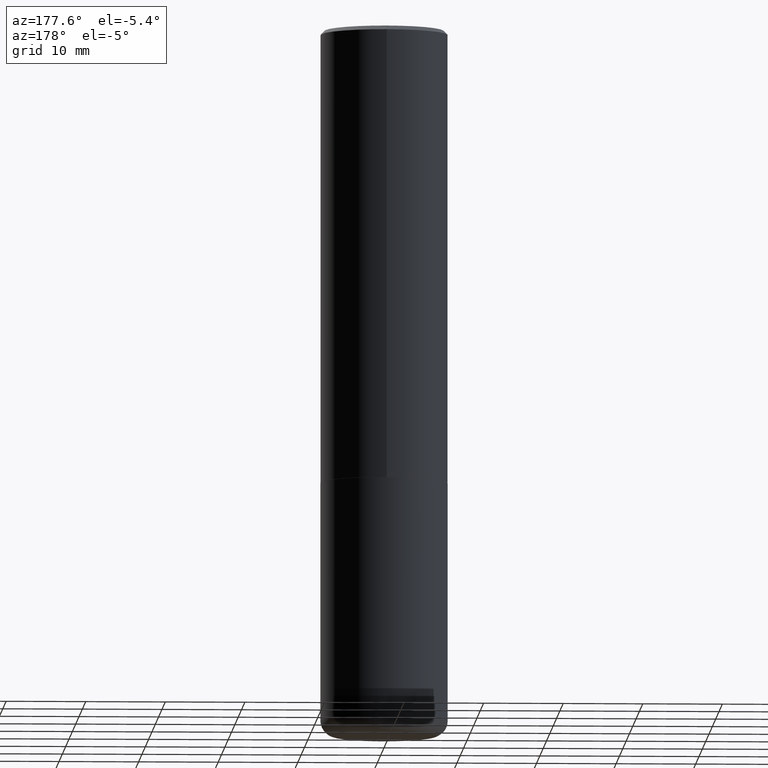
[diagram: clean part render]
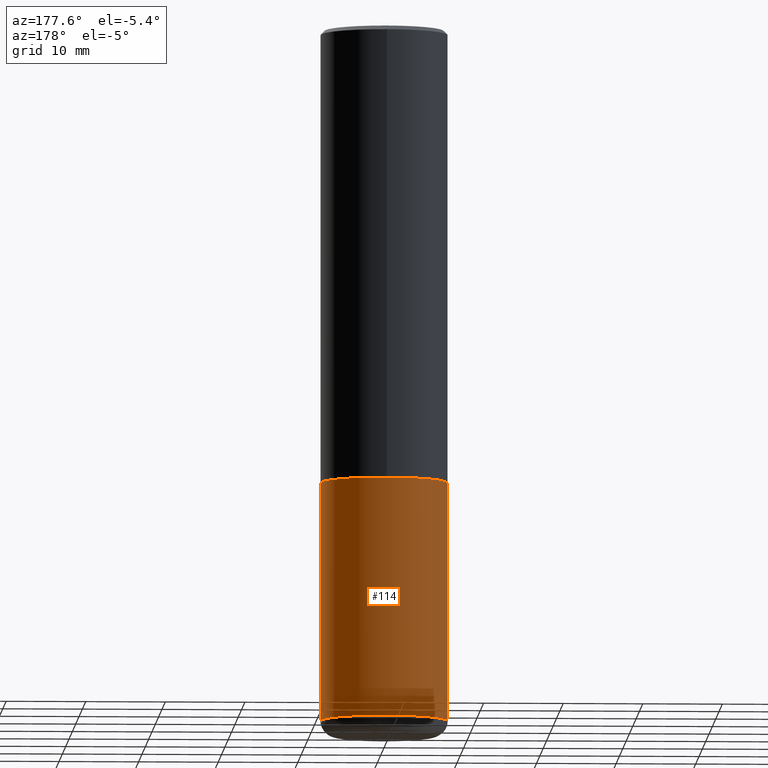
[diagram: same view with one face highlighted and labeled with its STEP entity id]
A machine part, auxiliary view. The second image highlights one B-rep face of the part: STEP entity #114.
In plain terms, the highlighted cylindrical surface (partial cylindrical patch) has radius 7.9997 mm, axis along (-0, 0, 1).
Its self-contained STEP definition (entity closure, byte-faithful):
#17 = AXIS2_PLACEMENT_3D ( 'NONE', #188, #324, #24 ) ;
#21 = ORIENTED_EDGE ( 'NONE', *, *, #118, .F. ) ;
#24 = DIRECTION ( 'NONE',  ( 1.000000000000000000, -6.982962677686266711E-15, 4.876176775795936353E-29 ) ) ;
#26 = ORIENTED_EDGE ( 'NONE', *, *, #66, .T. ) ;
#40 = VERTEX_POINT ( 'NONE', #389 ) ;
#53 = LINE ( 'NONE', #147, #103 ) ;
#56 = CYLINDRICAL_SURFACE ( 'NONE', #17, 0.3149500000000000077 ) ;
#58 = DIRECTION ( 'NONE',  ( 1.000000000000000000, -6.982962677686269866E-15, 0.000000000000000000 ) ) ;
#60 = EDGE_CURVE ( 'NONE', #381, #320, #74, .T. ) ;
#66 = EDGE_CURVE ( 'NONE', #320, #40, #191, .T. ) ;
#74 = CIRCLE ( 'NONE', #239, 0.3149500000000000077 ) ;
#103 = VECTOR ( 'NONE', #305, 39.37007874015748143 ) ;
#114 = ADVANCED_FACE ( 'NONE', ( #353 ), #56, .T. ) ;
#118 = EDGE_CURVE ( 'NONE', #395, #40, #336, .T. ) ;
#120 = DIRECTION ( 'NONE',  ( -2.445468806185136877E-29, 3.491481338843145188E-15, 1.000000000000000000 ) ) ;
#125 = VECTOR ( 'NONE', #120, 39.37007874015748143 ) ;
#138 = CARTESIAN_POINT ( 'NONE',  ( -0.3149500000000001743, -9.721167535529105379E-15, -3.425199999999999800 ) ) ;
#147 = CARTESIAN_POINT ( 'NONE',  ( 0.3149500000000000077, -2.199284095337289871E-15, 1.535751875536930130E-29 ) ) ;
#149 = CARTESIAN_POINT ( 'NONE',  ( 5.487876547960063631E-29, -7.835233272497900762E-15, -2.244099999999999540 ) ) ;
#188 = CARTESIAN_POINT ( 'NONE',  ( 0.000000000000000000, 0.000000000000000000, 0.000000000000000000 ) ) ;
#191 = LINE ( 'NONE', #298, #125 ) ;
#239 = AXIS2_PLACEMENT_3D ( 'NONE', #259, #358, #58 ) ;
#241 = ORIENTED_EDGE ( 'NONE', *, *, #413, .F. ) ;
#259 = CARTESIAN_POINT ( 'NONE',  ( 8.376219754945329068E-29, -1.195902188180554136E-14, -3.425199999999999800 ) ) ;
#283 = CARTESIAN_POINT ( 'NONE',  ( 0.3149500000000001743, -1.415830597714283281E-14, -3.425199999999999800 ) ) ;
#294 = DIRECTION ( 'NONE',  ( -2.445468806185136597E-29, 3.491481338843145583E-15, 1.000000000000000000 ) ) ;
#298 = CARTESIAN_POINT ( 'NONE',  ( -0.3149500000000000077, 2.237854346276435590E-15, -1.549218606675782676E-29 ) ) ;
#305 = DIRECTION ( 'NONE',  ( -2.445468806185136877E-29, 3.491481338843145188E-15, 1.000000000000000000 ) ) ;
#306 = AXIS2_PLACEMENT_3D ( 'NONE', #149, #294, #414 ) ;
#320 = VERTEX_POINT ( 'NONE', #138 ) ;
#324 = DIRECTION ( 'NONE',  ( -2.445468806185136597E-29, 3.491481338843145583E-15, 1.000000000000000000 ) ) ;
#336 = CIRCLE ( 'NONE', #306, 0.3149500000000000077 ) ;
#353 = FACE_OUTER_BOUND ( 'NONE', #399, .T. ) ;
#358 = DIRECTION ( 'NONE',  ( -2.445468806185136597E-29, 3.491481338843145583E-15, 1.000000000000000000 ) ) ;
#359 = ORIENTED_EDGE ( 'NONE', *, *, #60, .T. ) ;
#381 = VERTEX_POINT ( 'NONE', #283 ) ;
#389 = CARTESIAN_POINT ( 'NONE',  ( -0.3149500000000000077, -7.659273230875285867E-15, -2.244099999999999540 ) ) ;
#395 = VERTEX_POINT ( 'NONE', #410 ) ;
#399 = EDGE_LOOP ( 'NONE', ( #359, #26, #21, #241 ) ) ;
#410 = CARTESIAN_POINT ( 'NONE',  ( 0.3149500000000000077, -1.003451736783518906E-14, -2.244099999999999540 ) ) ;
#413 = EDGE_CURVE ( 'NONE', #381, #395, #53, .T. ) ;
#414 = DIRECTION ( 'NONE',  ( 1.000000000000000000, -6.982962677686263555E-15, 0.000000000000000000 ) ) ;